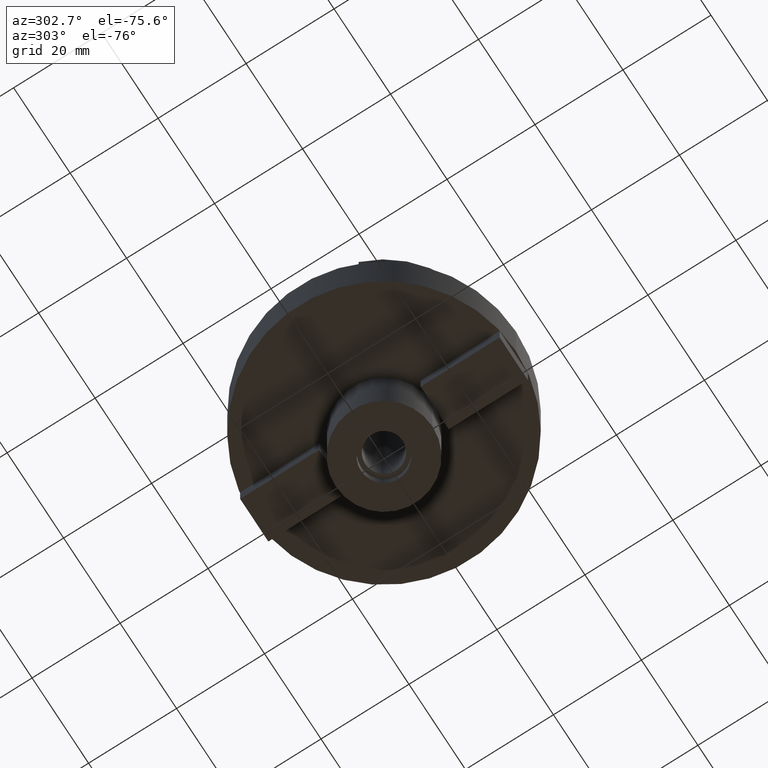
[diagram: clean part render]
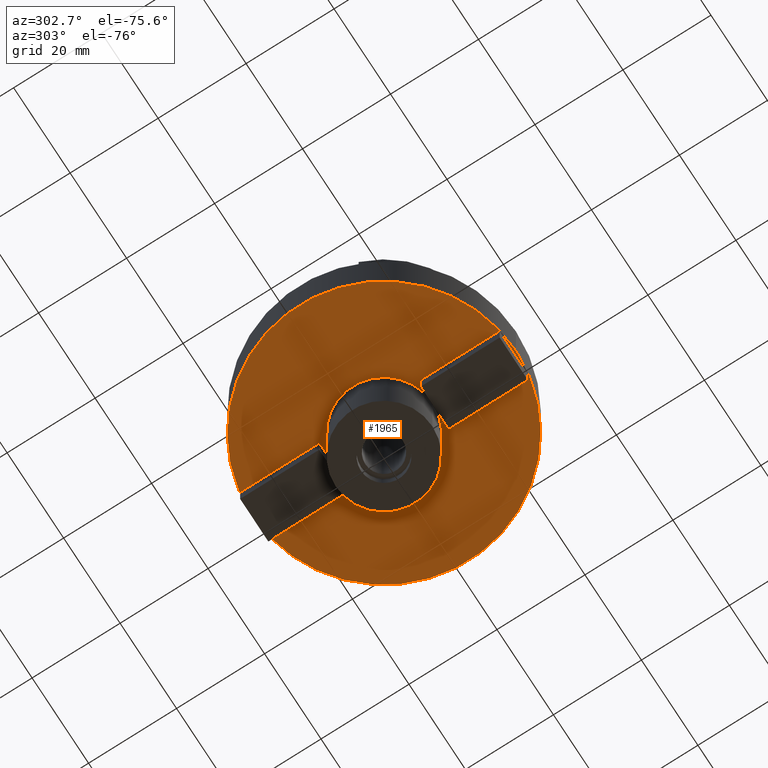
[diagram: same view with one face highlighted and labeled with its STEP entity id]
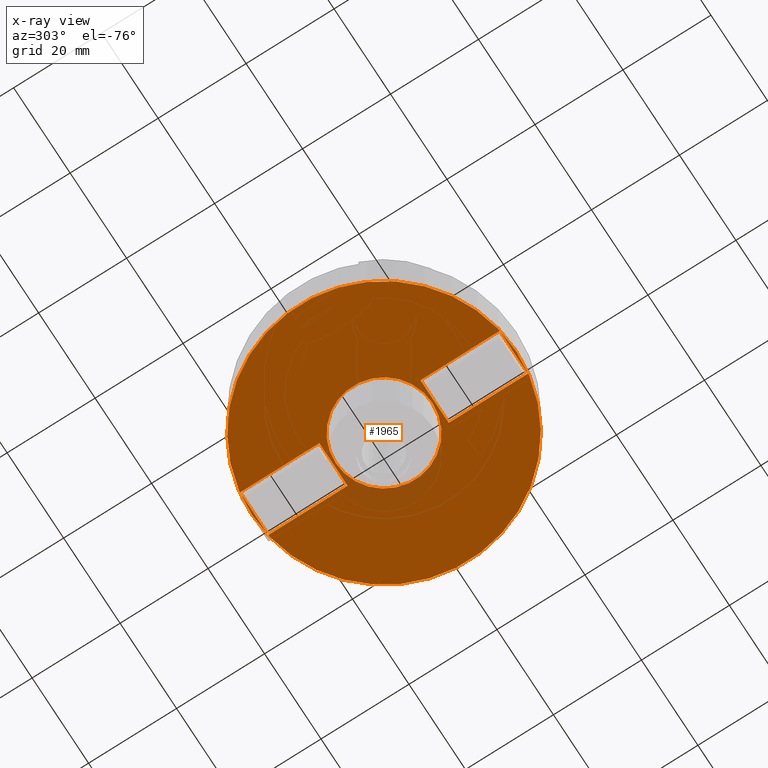
[diagram: x-ray of the same camera — body ghosted, the highlighted face saturated]
A machine part, auxiliary view. The second image highlights one B-rep face of the part: STEP entity #1965.
The next image is the same camera in x-ray: the body ghosted, the highlighted face saturated — about 4% of this face is hidden behind the body in this view.
In plain terms, the highlighted planar face has unit normal (0, 0, -1).
Its self-contained STEP definition (entity closure, byte-faithful):
#739=CARTESIAN_POINT('',(0.E0,0.E0,-4.5E1));
#740=DIRECTION('',(0.E0,0.E0,1.E0));
#741=DIRECTION('',(0.E0,-1.E0,0.E0));
#742=AXIS2_PLACEMENT_3D('',#739,#740,#741);
#747=CARTESIAN_POINT('',(0.E0,0.E0,-4.5E1));
#748=DIRECTION('',(0.E0,0.E0,1.E0));
#749=DIRECTION('',(0.E0,1.E0,0.E0));
#750=AXIS2_PLACEMENT_3D('',#747,#748,#749);
#755=CARTESIAN_POINT('',(0.E0,0.E0,-4.5E1));
#756=DIRECTION('',(0.E0,0.E0,-1.E0));
#757=DIRECTION('',(0.E0,-1.E0,0.E0));
#758=AXIS2_PLACEMENT_3D('',#755,#756,#757);
#763=CARTESIAN_POINT('',(0.E0,0.E0,-4.5E1));
#764=DIRECTION('',(0.E0,0.E0,-1.E0));
#765=DIRECTION('',(0.E0,1.E0,0.E0));
#766=AXIS2_PLACEMENT_3D('',#763,#764,#765);
#771=DIRECTION('',(0.E0,1.E0,0.E0));
#772=VECTOR('',#771,1.8E1);
#773=CARTESIAN_POINT('',(-5.E0,1.15E1,-4.5E1));
#774=LINE('',#773,#772);
#778=DIRECTION('',(-1.E0,0.E0,0.E0));
#779=VECTOR('',#778,1.E1);
#780=CARTESIAN_POINT('',(5.E0,1.15E1,-4.5E1));
#781=LINE('',#780,#779);
#785=DIRECTION('',(0.E0,-1.E0,0.E0));
#786=VECTOR('',#785,1.8E1);
#787=CARTESIAN_POINT('',(5.E0,-1.15E1,-4.5E1));
#788=LINE('',#787,#786);
#792=DIRECTION('',(1.E0,0.E0,0.E0));
#793=VECTOR('',#792,1.E1);
#794=CARTESIAN_POINT('',(-5.E0,-1.15E1,-4.5E1));
#795=LINE('',#794,#793);
#1071=DIRECTION('',(0.E0,1.E0,0.E0));
#1072=VECTOR('',#1071,1.8E1);
#1073=CARTESIAN_POINT('',(5.E0,1.15E1,-4.5E1));
#1074=LINE('',#1073,#1072);
#1099=DIRECTION('',(-1.E0,0.E0,0.E0));
#1100=VECTOR('',#1099,1.E1);
#1101=CARTESIAN_POINT('',(5.E0,2.95E1,-4.5E1));
#1102=LINE('',#1101,#1100);
#1141=DIRECTION('',(0.E0,-1.E0,0.E0));
#1142=VECTOR('',#1141,1.8E1);
#1143=CARTESIAN_POINT('',(-5.E0,-1.15E1,-4.5E1));
#1144=LINE('',#1143,#1142);
#1169=DIRECTION('',(1.E0,0.E0,0.E0));
#1170=VECTOR('',#1169,1.E1);
#1171=CARTESIAN_POINT('',(-5.E0,-2.95E1,-4.5E1));
#1172=LINE('',#1171,#1170);
#1265=CARTESIAN_POINT('',(0.E0,1.1E1,-4.5E1));
#1266=VERTEX_POINT('',#1265);
#1267=CARTESIAN_POINT('',(0.E0,-1.1E1,-4.5E1));
#1268=VERTEX_POINT('',#1267);
#1269=CARTESIAN_POINT('',(0.E0,-3.E1,-4.5E1));
#1270=CARTESIAN_POINT('',(0.E0,3.E1,-4.5E1));
#1271=VERTEX_POINT('',#1269);
#1272=VERTEX_POINT('',#1270);
#1273=CARTESIAN_POINT('',(-5.E0,1.15E1,-4.5E1));
#1274=CARTESIAN_POINT('',(-5.E0,2.95E1,-4.5E1));
#1275=VERTEX_POINT('',#1273);
#1276=VERTEX_POINT('',#1274);
#1277=CARTESIAN_POINT('',(5.E0,2.95E1,-4.5E1));
#1278=VERTEX_POINT('',#1277);
#1279=CARTESIAN_POINT('',(5.E0,1.15E1,-4.5E1));
#1280=VERTEX_POINT('',#1279);
#1281=CARTESIAN_POINT('',(5.E0,-1.15E1,-4.5E1));
#1282=CARTESIAN_POINT('',(5.E0,-2.95E1,-4.5E1));
#1283=VERTEX_POINT('',#1281);
#1284=VERTEX_POINT('',#1282);
#1285=CARTESIAN_POINT('',(-5.E0,-2.95E1,-4.5E1));
#1286=VERTEX_POINT('',#1285);
#1287=CARTESIAN_POINT('',(-5.E0,-1.15E1,-4.5E1));
#1288=VERTEX_POINT('',#1287);
#1930=CARTESIAN_POINT('',(0.E0,0.E0,-4.5E1));
#1931=DIRECTION('',(0.E0,0.E0,-1.E0));
#1932=DIRECTION('',(0.E0,-1.E0,0.E0));
#1933=AXIS2_PLACEMENT_3D('',#1930,#1931,#1932);
#1934=PLANE('',#1933);
#1935=ORIENTED_EDGE('',*,*,#1923,.T.);
#1936=ORIENTED_EDGE('',*,*,#1912,.T.);
#1937=EDGE_LOOP('',(#1935,#1936));
#1938=FACE_OUTER_BOUND('',#1937,.F.);
#1940=ORIENTED_EDGE('',*,*,#1939,.T.);
#1942=ORIENTED_EDGE('',*,*,#1941,.T.);
#1943=EDGE_LOOP('',(#1940,#1942));
#1944=FACE_BOUND('',#1943,.F.);
#1946=ORIENTED_EDGE('',*,*,#1945,.T.);
#1948=ORIENTED_EDGE('',*,*,#1947,.F.);
#1950=ORIENTED_EDGE('',*,*,#1949,.F.);
#1952=ORIENTED_EDGE('',*,*,#1951,.T.);
#1953=EDGE_LOOP('',(#1946,#1948,#1950,#1952));
#1954=FACE_BOUND('',#1953,.F.);
#1956=ORIENTED_EDGE('',*,*,#1955,.T.);
#1958=ORIENTED_EDGE('',*,*,#1957,.F.);
#1960=ORIENTED_EDGE('',*,*,#1959,.F.);
#1962=ORIENTED_EDGE('',*,*,#1961,.T.);
#1963=EDGE_LOOP('',(#1956,#1958,#1960,#1962));
#1964=FACE_BOUND('',#1963,.F.);
#743=CIRCLE('',#742,3.E1);
#751=CIRCLE('',#750,3.E1);
#759=CIRCLE('',#758,1.1E1);
#767=CIRCLE('',#766,1.1E1);
#1912=EDGE_CURVE('',#1272,#1271,#751,.T.);
#1923=EDGE_CURVE('',#1271,#1272,#743,.T.);
#1939=EDGE_CURVE('',#1268,#1266,#759,.T.);
#1941=EDGE_CURVE('',#1266,#1268,#767,.T.);
#1945=EDGE_CURVE('',#1275,#1276,#774,.T.);
#1947=EDGE_CURVE('',#1278,#1276,#1102,.T.);
#1949=EDGE_CURVE('',#1280,#1278,#1074,.T.);
#1951=EDGE_CURVE('',#1280,#1275,#781,.T.);
#1955=EDGE_CURVE('',#1283,#1284,#788,.T.);
#1957=EDGE_CURVE('',#1286,#1284,#1172,.T.);
#1959=EDGE_CURVE('',#1288,#1286,#1144,.T.);
#1961=EDGE_CURVE('',#1288,#1283,#795,.T.);
#1965=ADVANCED_FACE('',(#1938,#1944,#1954,#1964),#1934,.T.);